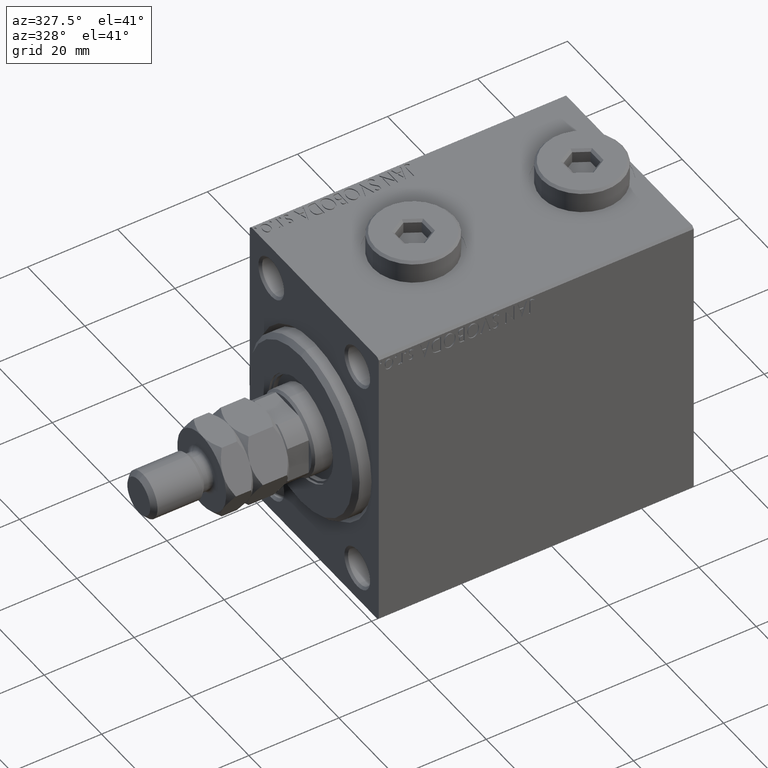
[diagram: clean part render]
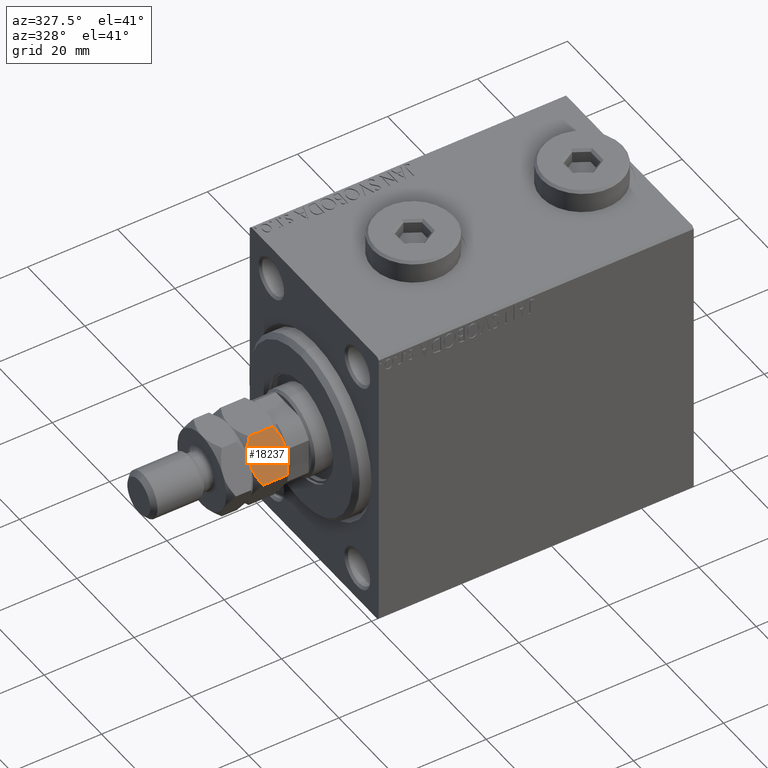
[diagram: same view with one face highlighted and labeled with its STEP entity id]
A machine part, auxiliary view. The second image highlights one B-rep face of the part: STEP entity #18237.
In plain terms, the highlighted planar face has unit normal (0, 0.866, -0.5).
Its self-contained STEP definition (entity closure, byte-faithful):
#11 = LINE ( 'NONE', #32434, #10755 ) ;
#345 = CARTESIAN_POINT ( 'NONE',  ( -1.010883460254179403E-15, -9.814954576223637872, 1.314954576223630323 ) ) ;
#540 = CARTESIAN_POINT ( 'NONE',  ( 7.149107353189445568, -5.687415521394182605, 7.399061587263878970 ) ) ;
#575 = CARTESIAN_POINT ( 'NONE',  ( 2.784079206026082609, -8.207565697179241226, 0.1305202873832139177 ) ) ;
#776 = CARTESIAN_POINT ( 'NONE',  ( 7.834310611062749174, -5.291813236011422283, 7.069381371676068504 ) ) ;
#1366 = CARTESIAN_POINT ( 'NONE',  ( 5.000029324638989081, -6.928186299687297378, 0.03373674959836757414 ) ) ;
#1829 = CARTESIAN_POINT ( 'NONE',  ( 5.733718739115172269, -6.504590518737895621, 0.1608217079418340634 ) ) ;
#2712 = EDGE_CURVE ( 'NONE', #12087, #31606, #36249, .T. ) ;
#3487 = ORIENTED_EDGE ( 'NONE', *, *, #7065, .T. ) ;
#4379 = CARTESIAN_POINT ( 'NONE',  ( 0.6656893889372494932, -9.430618628324040742, 0.9306186283239298307 ) ) ;
#4417 = VERTEX_POINT ( 'NONE', #33857 ) ;
#4445 = AXIS2_PLACEMENT_3D ( 'NONE', #9599, #9824, #45867 ) ;
#5709 = DIRECTION ( 'NONE',  ( -0.000000000000000000, -0.000000000000000000, -1.000000000000000000 ) ) ;
#7065 = EDGE_CURVE ( 'NONE', #31093, #4417, #11, .T. ) ;
#7152 = DIRECTION ( 'NONE',  ( -0.000000000000000000, -0.000000000000000000, -1.000000000000000000 ) ) ;
#7368 = CARTESIAN_POINT ( 'NONE',  ( 3.499970675361007366, -7.794245564648166535, 7.966263250401633300 ) ) ;
#8532 = ORIENTED_EDGE ( 'NONE', *, *, #20231, .F. ) ;
#9599 = CARTESIAN_POINT ( 'NONE',  ( -9.757819552369539906E-16, -9.814954576223637872, 8.000000000000000000 ) ) ;
#9824 = DIRECTION ( 'NONE',  ( -0.4999999999999995559, 0.8660254037844389297, 0.000000000000000000 ) ) ;
#10755 = VECTOR ( 'NONE', #7152, 1000.000000000000000 ) ;
#12087 = VERTEX_POINT ( 'NONE', #13670 ) ;
#12438 = CARTESIAN_POINT ( 'NONE',  ( 4.249999999999994671, -7.361215932167728404, 8.000000000000000000 ) ) ;
#12757 = EDGE_CURVE ( 'NONE', #31093, #31692, #44482, .T. ) ;
#13670 = CARTESIAN_POINT ( 'NONE',  ( 8.500000000000001776, -4.907477288111817160, 1.314954576223629878 ) ) ;
#13886 = PLANE ( 'NONE',  #4445 ) ;
#14273 = CARTESIAN_POINT ( 'NONE',  ( 2.407069963478076335, -8.425232084851307590, 7.746375910675348031 ) ) ;
#16349 = CARTESIAN_POINT ( 'NONE',  ( 7.151994807070145121, -5.685748449118888104, 0.6032092124201289263 ) ) ;
#18237 = ADVANCED_FACE ( 'NONE', ( #34887 ), #13886, .F. ) ;
#18644 = CARTESIAN_POINT ( 'NONE',  ( 5.715920793973914726, -6.514866167156222687, 7.869479712616787026 ) ) ;
#18681 = CARTESIAN_POINT ( 'NONE',  ( 3.510754653168322914, -7.788019432158174382, -1.295960409299079124E-15 ) ) ;
#20231 = EDGE_CURVE ( 'NONE', #31606, #4417, #27459, .T. ) ;
#22944 = ORIENTED_EDGE ( 'NONE', *, *, #31323, .F. ) ;
#23045 = CARTESIAN_POINT ( 'NONE',  ( 7.833539178395718672, -5.292258622869395523, 0.9301732414660633941 ) ) ;
#24791 = CARTESIAN_POINT ( 'NONE',  ( 0.6664608216042839928, -9.430173241466070166, 7.069826758533944933 ) ) ;
#25818 = ORIENTED_EDGE ( 'NONE', *, *, #12757, .F. ) ;
#27459 = B_SPLINE_CURVE_WITH_KNOTS ( 'NONE', 3,
 ( #32754, #18681, #575, #29639, #4379, #345 ),
 .UNSPECIFIED., .F., .F.,
 ( 4, 2, 4 ),
 ( 0.005087299150080244227, 0.007613005268011863516, 0.01013871138594348367 ),
 .UNSPECIFIED. ) ;
#28836 = CARTESIAN_POINT ( 'NONE',  ( 1.348005192929855101, -9.036683415216574033, 7.396790787579876181 ) ) ;
#29346 = CARTESIAN_POINT ( 'NONE',  ( -7.581970720220202129E-16, -9.814954576223637872, 6.685045423776371010 ) ) ;
#29639 = CARTESIAN_POINT ( 'NONE',  ( 1.350892646810552433, -9.035016342941277756, 0.6009384127361203642 ) ) ;
#30431 = CARTESIAN_POINT ( 'NONE',  ( 4.249999999999997335, -7.361215932167732845, 0.000000000000000000 ) ) ;
#31093 = VERTEX_POINT ( 'NONE', #29346 ) ;
#31323 = EDGE_CURVE ( 'NONE', #41702, #12087, #42184, .T. ) ;
#31606 = VERTEX_POINT ( 'NONE', #40131 ) ;
#31692 = VERTEX_POINT ( 'NONE', #12438 ) ;
#32184 = CARTESIAN_POINT ( 'NONE',  ( 2.766281260884825066, -8.217841345597570069, 7.839178292058168296 ) ) ;
#32434 = CARTESIAN_POINT ( 'NONE',  ( -9.757819552369539906E-16, -9.814954576223637872, 8.000000000000000000 ) ) ;
#32754 = CARTESIAN_POINT ( 'NONE',  ( 4.249999999999997335, -7.361215932167732845, 0.000000000000000000 ) ) ;
#33397 = B_SPLINE_CURVE_WITH_KNOTS ( 'NONE', 3,
 ( #33665, #44633, #18644, #540, #776, #44395 ),
 .UNSPECIFIED., .F., .F.,
 ( 4, 2, 4 ),
 ( 0.005087299150080232951, 0.007613005268011856577, 0.01013871138594348020 ),
 .UNSPECIFIED. ) ;
#33504 = EDGE_CURVE ( 'NONE', #31692, #41702, #33397, .T. ) ;
#33665 = CARTESIAN_POINT ( 'NONE',  ( 4.249999999999994671, -7.361215932167728404, 8.000000000000000000 ) ) ;
#33857 = CARTESIAN_POINT ( 'NONE',  ( -1.010883460254179403E-15, -9.814954576223637872, 1.314954576223630323 ) ) ;
#34481 = CARTESIAN_POINT ( 'NONE',  ( 6.092930036521920556, -6.297199779484154547, 0.2536240893246553552 ) ) ;
#34887 = FACE_OUTER_BOUND ( 'NONE', #36668, .T. ) ;
#35514 = CARTESIAN_POINT ( 'NONE',  ( 3.877770021349439045, -7.576123010542081815, 8.000000000000003553 ) ) ;
#36249 = B_SPLINE_CURVE_WITH_KNOTS ( 'NONE', 3,
 ( #41638, #23045, #16349, #34481, #1829, #1366, #41867, #30431 ),
 .UNSPECIFIED., .F., .F.,
 ( 4, 2, 2, 4 ),
 ( 2.544313836654547822E-07, 0.002543776790731953636, 0.003815537970406099148, 0.005087299150080244227 ),
 .UNSPECIFIED. ) ;
#36668 = EDGE_LOOP ( 'NONE', ( #45508, #22944, #46629, #25818, #3487, #8532 ) ) ;
#40131 = CARTESIAN_POINT ( 'NONE',  ( 4.249999999999997335, -7.361215932167732845, 0.000000000000000000 ) ) ;
#41638 = CARTESIAN_POINT ( 'NONE',  ( 8.500000000000001776, -4.907477288111817160, 1.314954576223629878 ) ) ;
#41702 = VERTEX_POINT ( 'NONE', #45357 ) ;
#41867 = CARTESIAN_POINT ( 'NONE',  ( 4.622229978650556070, -7.146308853793384763, -1.291725244562808017E-15 ) ) ;
#42184 = LINE ( 'NONE', #46228, #43549 ) ;
#43386 = CARTESIAN_POINT ( 'NONE',  ( 4.249999999999994671, -7.361215932167728404, 8.000000000000000000 ) ) ;
#43549 = VECTOR ( 'NONE', #5709, 1000.000000000000000 ) ;
#44395 = CARTESIAN_POINT ( 'NONE',  ( 8.500000000000001776, -4.907477288111821601, 6.685045423776368345 ) ) ;
#44482 = B_SPLINE_CURVE_WITH_KNOTS ( 'NONE', 3,
 ( #46971, #24791, #28836, #14273, #32184, #7368, #35514, #43386 ),
 .UNSPECIFIED., .F., .F.,
 ( 4, 2, 2, 4 ),
 ( 2.544313836662128767E-07, 0.002543776790731947998, 0.003815537970406090475, 0.005087299150080232951 ),
 .UNSPECIFIED. ) ;
#44633 = CARTESIAN_POINT ( 'NONE',  ( 4.989245346831671313, -6.934412432177284202, 8.000000000000001776 ) ) ;
#45357 = CARTESIAN_POINT ( 'NONE',  ( 8.500000000000001776, -4.907477288111821601, 6.685045423776368345 ) ) ;
#45508 = ORIENTED_EDGE ( 'NONE', *, *, #2712, .F. ) ;
#45867 = DIRECTION ( 'NONE',  ( -0.8660254037844389297, -0.4999999999999995559, 0.000000000000000000 ) ) ;
#46228 = CARTESIAN_POINT ( 'NONE',  ( 8.500000000000001776, -4.907477288111821601, 8.000000000000000000 ) ) ;
#46629 = ORIENTED_EDGE ( 'NONE', *, *, #33504, .F. ) ;
#46971 = CARTESIAN_POINT ( 'NONE',  ( -7.581970720220202129E-16, -9.814954576223637872, 6.685045423776371010 ) ) ;